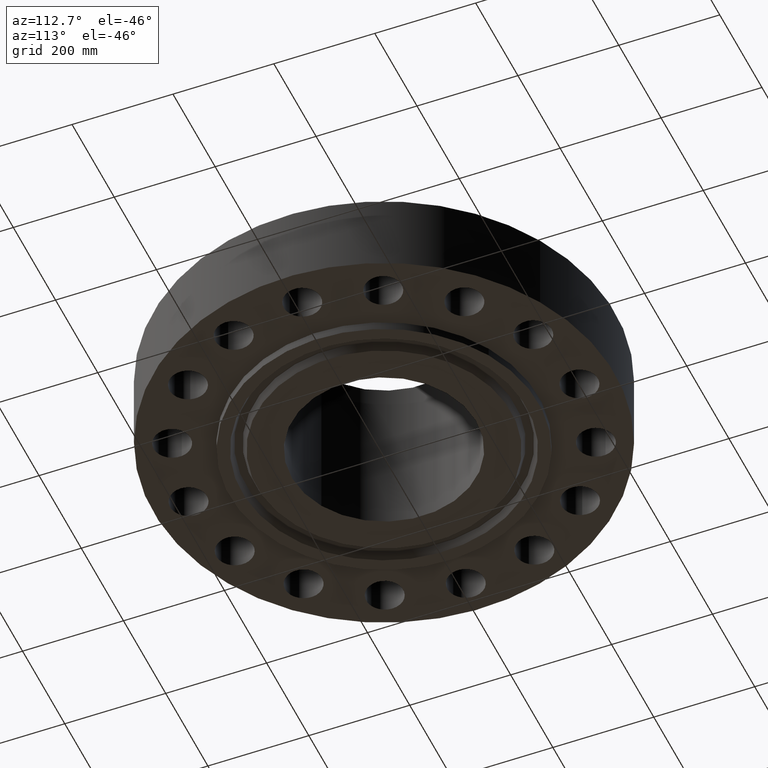
[diagram: clean part render]
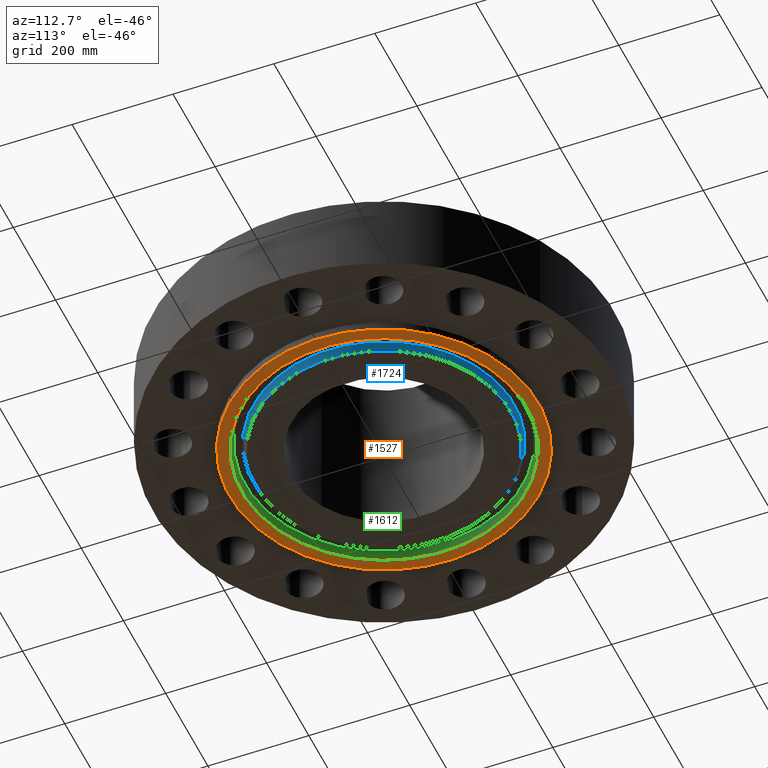
[diagram: same view with three faces highlighted in distinct colors, each labeled with its STEP entity id]
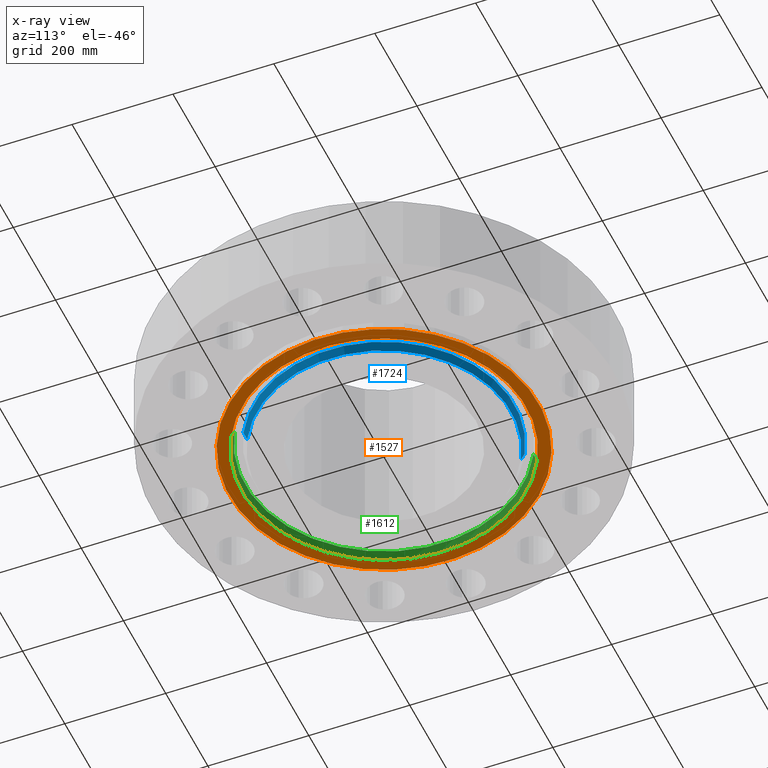
[diagram: x-ray of the same camera — body ghosted, the three highlighted faces saturated]
A machine part, auxiliary view with three faces highlighted in distinct colors.
The next image is the same camera in x-ray (body ghosted, the three faces saturated) — at least one of them is partly hidden behind the body in this view.
Their STEP definitions:

[orange] entity #1527 — the highlighted planar face has unit normal (0, 0, -1).
#517=AXIS2_PLACEMENT_3D('Circle Axis2P3D',#515,#516,$) ;
#552=AXIS2_PLACEMENT_3D('Circle Axis2P3D',#550,#551,$) ;
#1503=AXIS2_PLACEMENT_3D('Plane Axis2P3D',#1500,#1501,#1502) ;
#1511=AXIS2_PLACEMENT_3D('Circle Axis2P3D',#1509,#1510,$) ;
#1520=AXIS2_PLACEMENT_3D('Circle Axis2P3D',#1518,#1519,$) ;
#515=CARTESIAN_POINT('Axis2P3D Location',(0.,0.,-0.688000000003)) ;
#519=CARTESIAN_POINT('Vertex',(-5.78307055944,-10.5858396528,-0.688000000003)) ;
#521=CARTESIAN_POINT('Vertex',(5.78307055944,10.5858396528,-0.688000000003)) ;
#550=CARTESIAN_POINT('Axis2P3D Location',(0.,0.,-0.688000000003)) ;
#1500=CARTESIAN_POINT('Axis2P3D Location',(0.,7.21900000003,-0.688000000003)) ;
#1509=CARTESIAN_POINT('Axis2P3D Location',(-2.79741234551E-016,1.1189649382E-015,-0.688000000003)) ;
#1513=CARTESIAN_POINT('Vertex',(5.3187469253,-9.73590094165,-0.688000000003)) ;
#1515=CARTESIAN_POINT('Vertex',(-5.3187469253,9.73590094165,-0.688000000003)) ;
#1518=CARTESIAN_POINT('Axis2P3D Location',(-5.59482469102E-016,-1.1189649382E-015,-0.688000000003)) ;
#516=DIRECTION('Axis2P3D Direction',(0.,0.,-0.0393700787402)) ;
#551=DIRECTION('Axis2P3D Direction',(0.,0.,-0.0393700787402)) ;
#1501=DIRECTION('Axis2P3D Direction',(0.,0.,-0.0393700787402)) ;
#1502=DIRECTION('Axis2P3D XDirection',(0.0393700787402,0.,0.)) ;
#1510=DIRECTION('Axis2P3D Direction',(0.,0.,-0.0393700787402)) ;
#1519=DIRECTION('Axis2P3D Direction',(0.,0.,-0.0393700787402)) ;
#1506=ORIENTED_EDGE('',*,*,#523,.T.) ;
#1507=ORIENTED_EDGE('',*,*,#554,.T.) ;
#1524=ORIENTED_EDGE('',*,*,#1517,.F.) ;
#1525=ORIENTED_EDGE('',*,*,#1522,.F.) ;
#1526=FACE_BOUND('',#1523,.T.) ;
#1527=ADVANCED_FACE('PartBody',(#1508,#1526),#1504,.T.) ;
#518=CIRCLE('generated circle',#517,12.0625) ;
#553=CIRCLE('generated circle',#552,12.0625) ;
#1512=CIRCLE('generated circle',#1511,11.094) ;
#1521=CIRCLE('generated circle',#1520,11.094) ;
#523=EDGE_CURVE('',#520,#522,#518,.T.) ;
#554=EDGE_CURVE('',#522,#520,#553,.T.) ;
#1517=EDGE_CURVE('',#1514,#1516,#1512,.T.) ;
#1522=EDGE_CURVE('',#1516,#1514,#1521,.T.) ;
#1505=EDGE_LOOP('',(#1506,#1507)) ;
#1523=EDGE_LOOP('',(#1524,#1525)) ;
#1508=FACE_OUTER_BOUND('',#1505,.T.) ;
#1504=PLANE('',#1503) ;
#520=VERTEX_POINT('',#519) ;
#522=VERTEX_POINT('',#521) ;
#1514=VERTEX_POINT('',#1513) ;
#1516=VERTEX_POINT('',#1515) ;

[blue] entity #1724 — the highlighted conical surface has half-angle 23 deg.
#1530=AXIS2_PLACEMENT_3D('Circle Axis2P3D',#1528,#1529,$) ;
#1674=AXIS2_PLACEMENT_3D('Circle Axis2P3D',#1672,#1673,$) ;
#1706=AXIS2_PLACEMENT_3D('Cone Axis2P3D',#1703,#1704,#1705) ;
#1528=CARTESIAN_POINT('Axis2P3D Location',(-1.1189649382E-015,1.1189649382E-015,-0.688000000003)) ;
#1532=CARTESIAN_POINT('Vertex',(-4.74918938543,8.69333285812,-0.688000000003)) ;
#1534=CARTESIAN_POINT('Vertex',(4.74918938543,-8.69333285812,-0.688000000003)) ;
#1669=CARTESIAN_POINT('Vertex',(4.87754524661,-8.92828668601,-0.0572712739222)) ;
#1672=CARTESIAN_POINT('Axis2P3D Location',(0.,0.,-0.0572712739222)) ;
#1676=CARTESIAN_POINT('Vertex',(-4.87754524661,8.92828668601,-0.0572712739222)) ;
#1703=CARTESIAN_POINT('Axis2P3D Location',(0.,0.,-0.748000000003)) ;
#1708=CARTESIAN_POINT('Line Origine',(-4.81336731602,8.81080977207,-0.372635636962)) ;
#1713=CARTESIAN_POINT('Line Origine',(4.81336731602,-8.81080977207,-0.372635636962)) ;
#1529=DIRECTION('Axis2P3D Direction',(0.,0.,-0.0393700787402)) ;
#1673=DIRECTION('Axis2P3D Direction',(0.,0.,0.0393700787402)) ;
#1704=DIRECTION('Axis2P3D Direction',(0.,0.,0.0393700787402)) ;
#1705=DIRECTION('Axis2P3D XDirection',(-0.0188750212049,0.0345504945626,0.)) ;
#1709=DIRECTION('Vector Direction',(-0.00737505833565,0.0134999537303,0.0362403485611)) ;
#1714=DIRECTION('Vector Direction',(0.00737505833565,-0.0134999537303,0.0362403485611)) ;
#1710=VECTOR('Line Direction',#1709,0.0393700787402) ;
#1715=VECTOR('Line Direction',#1714,0.0393700787402) ;
#1719=ORIENTED_EDGE('',*,*,#1712,.F.) ;
#1720=ORIENTED_EDGE('',*,*,#1678,.F.) ;
#1721=ORIENTED_EDGE('',*,*,#1717,.T.) ;
#1722=ORIENTED_EDGE('',*,*,#1536,.F.) ;
#1724=ADVANCED_FACE('PartBody',(#1723),#1707,.T.) ;
#1531=CIRCLE('generated circle',#1530,9.90600000004) ;
#1675=CIRCLE('generated circle',#1674,10.1737284601) ;
#1707=CONICAL_SURFACE('Cone',#1706,9.88053151107,0.401425727959) ;
#1536=EDGE_CURVE('',#1533,#1535,#1531,.T.) ;
#1678=EDGE_CURVE('',#1670,#1677,#1675,.T.) ;
#1712=EDGE_CURVE('',#1677,#1533,#1711,.F.) ;
#1717=EDGE_CURVE('',#1670,#1535,#1716,.F.) ;
#1718=EDGE_LOOP('',(#1719,#1720,#1721,#1722)) ;
#1723=FACE_OUTER_BOUND('',#1718,.T.) ;
#1711=LINE('Line',#1708,#1710) ;
#1716=LINE('Line',#1713,#1715) ;
#1533=VERTEX_POINT('',#1532) ;
#1535=VERTEX_POINT('',#1534) ;
#1670=VERTEX_POINT('',#1669) ;
#1677=VERTEX_POINT('',#1676) ;

[green] entity #1612 — the highlighted conical surface has half-angle 23 deg.
#1511=AXIS2_PLACEMENT_3D('Circle Axis2P3D',#1509,#1510,$) ;
#1558=AXIS2_PLACEMENT_3D('Circle Axis2P3D',#1556,#1557,$) ;
#1594=AXIS2_PLACEMENT_3D('Cone Axis2P3D',#1591,#1592,#1593) ;
#1509=CARTESIAN_POINT('Axis2P3D Location',(-2.79741234551E-016,1.1189649382E-015,-0.688000000003)) ;
#1513=CARTESIAN_POINT('Vertex',(5.3187469253,-9.73590094165,-0.688000000003)) ;
#1515=CARTESIAN_POINT('Vertex',(-5.3187469253,9.73590094165,-0.688000000003)) ;
#1556=CARTESIAN_POINT('Axis2P3D Location',(0.,0.,-0.0572712739222)) ;
#1560=CARTESIAN_POINT('Vertex',(-5.19039106412,9.50094711376,-0.0572712739222)) ;
#1562=CARTESIAN_POINT('Vertex',(5.19039106412,-9.50094711376,-0.0572712739222)) ;
#1591=CARTESIAN_POINT('Axis2P3D Location',(0.,0.,-0.0572712739222)) ;
#1596=CARTESIAN_POINT('Line Origine',(-5.25456899471,9.61842402771,-0.372635636962)) ;
#1601=CARTESIAN_POINT('Line Origine',(5.25456899471,-9.61842402771,-0.372635636962)) ;
#1510=DIRECTION('Axis2P3D Direction',(0.,0.,-0.0393700787402)) ;
#1557=DIRECTION('Axis2P3D Direction',(0.,0.,0.0393700787402)) ;
#1592=DIRECTION('Axis2P3D Direction',(-0.,-0.,-0.0393700787402)) ;
#1593=DIRECTION('Axis2P3D XDirection',(-0.0188750212049,0.0345504945626,0.)) ;
#1597=DIRECTION('Vector Direction',(-0.00737505833565,0.0134999537303,-0.0362403485611)) ;
#1602=DIRECTION('Vector Direction',(0.00737505833565,-0.0134999537303,-0.0362403485611)) ;
#1598=VECTOR('Line Direction',#1597,0.0393700787402) ;
#1603=VECTOR('Line Direction',#1602,0.0393700787402) ;
#1607=ORIENTED_EDGE('',*,*,#1517,.T.) ;
#1608=ORIENTED_EDGE('',*,*,#1600,.T.) ;
#1609=ORIENTED_EDGE('',*,*,#1564,.T.) ;
#1610=ORIENTED_EDGE('',*,*,#1605,.F.) ;
#1612=ADVANCED_FACE('PartBody',(#1611),#1595,.F.) ;
#1512=CIRCLE('generated circle',#1511,11.094) ;
#1559=CIRCLE('generated circle',#1558,10.82627154) ;
#1595=CONICAL_SURFACE('Cone',#1594,10.82627154,0.401425727959) ;
#1517=EDGE_CURVE('',#1514,#1516,#1512,.T.) ;
#1564=EDGE_CURVE('',#1561,#1563,#1559,.T.) ;
#1600=EDGE_CURVE('',#1516,#1561,#1599,.F.) ;
#1605=EDGE_CURVE('',#1514,#1563,#1604,.F.) ;
#1606=EDGE_LOOP('',(#1607,#1608,#1609,#1610)) ;
#1611=FACE_OUTER_BOUND('',#1606,.T.) ;
#1599=LINE('Line',#1596,#1598) ;
#1604=LINE('Line',#1601,#1603) ;
#1514=VERTEX_POINT('',#1513) ;
#1516=VERTEX_POINT('',#1515) ;
#1561=VERTEX_POINT('',#1560) ;
#1563=VERTEX_POINT('',#1562) ;